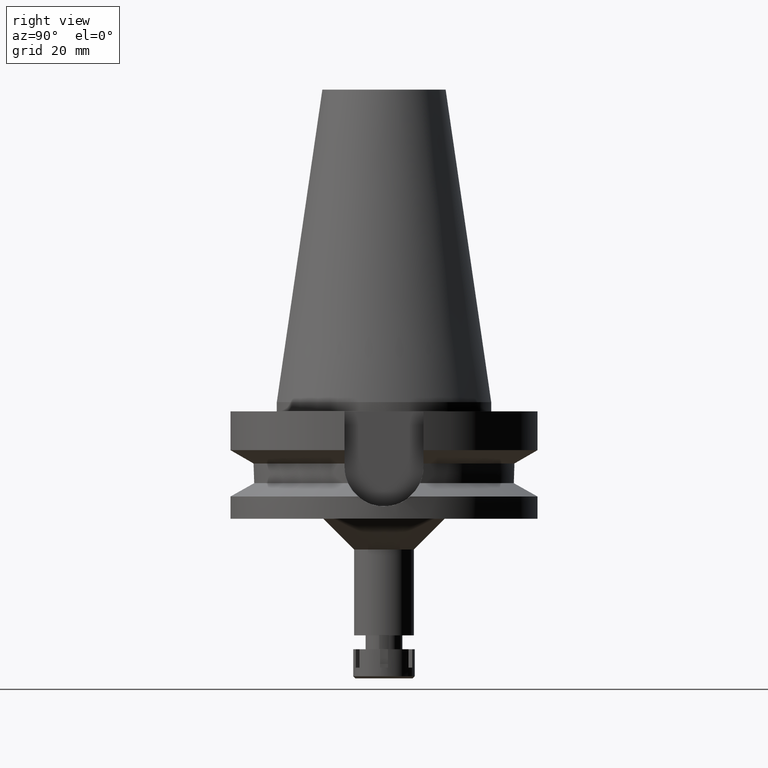
[diagram: clean part render]
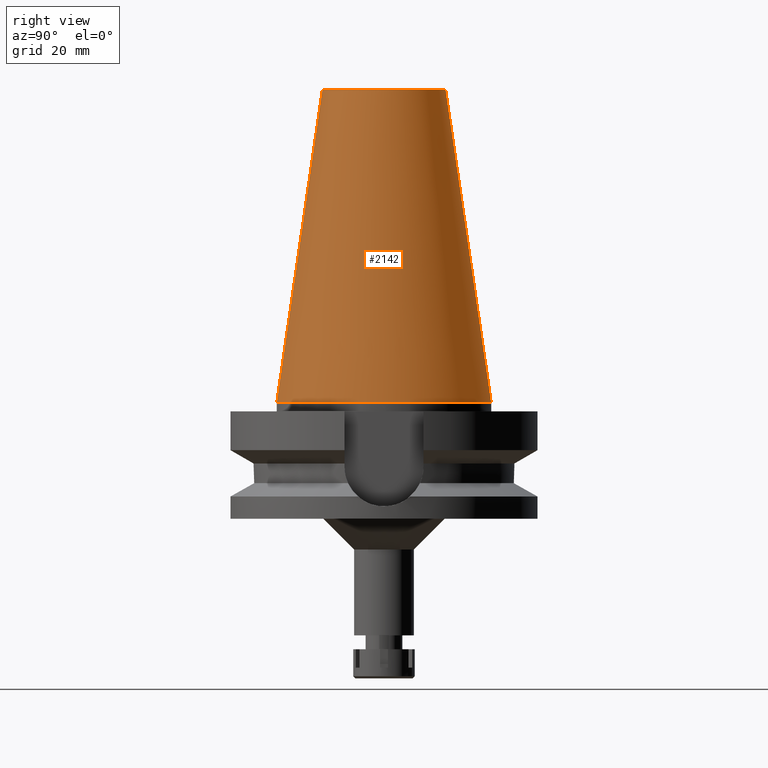
[diagram: same view with one face highlighted and labeled with its STEP entity id]
A machine part, right view. The second image highlights one B-rep face of the part: STEP entity #2142.
In plain terms, the highlighted conical surface has half-angle 8.297 deg.
Its self-contained STEP definition (entity closure, byte-faithful):
#128 = DIRECTION ( 'NONE',  ( 0.0000000000000000000, 0.0000000000000000000, -1.000000000000000000 ) ) ;
#151 = CARTESIAN_POINT ( 'NONE',  ( 0.0000000000000000000, -34.92499999999999716, 4.902744876745000264E-13 ) ) ;
#164 = DIRECTION ( 'NONE',  ( 0.0000000000000000000, -1.000000000000000000, 0.0000000000000000000 ) ) ;
#194 = CARTESIAN_POINT ( 'NONE',  ( 0.0000000000000000000, 1.847992019912999597E-14, 3.979039320256999774E-13 ) ) ;
#242 = EDGE_CURVE ( 'NONE', #2505, #2747, #472, .T. ) ;
#284 = DIRECTION ( 'NONE',  ( 0.0000000000000000000, -0.1443043893538948075, -0.9895333461855641000 ) ) ;
#300 = LINE ( 'NONE', #2583, #2312 ) ;
#395 = AXIS2_PLACEMENT_3D ( 'NONE', #1253, #2384, #1209 ) ;
#472 = CIRCLE ( 'NONE', #1893, 34.92499999999999716 ) ;
#679 = VERTEX_POINT ( 'NONE', #1841 ) ;
#686 = FACE_OUTER_BOUND ( 'NONE', #3061, .T. ) ;
#831 = LINE ( 'NONE', #2497, #3489 ) ;
#1033 = EDGE_CURVE ( 'NONE', #679, #2505, #300, .T. ) ;
#1108 = VERTEX_POINT ( 'NONE', #3139 ) ;
#1112 = ORIENTED_EDGE ( 'NONE', *, *, #3090, .T. ) ;
#1181 = DIRECTION ( 'NONE',  ( 0.0000000000000000000, 0.1443043893538948075, -0.9895333461855641000 ) ) ;
#1209 = DIRECTION ( 'NONE',  ( 0.0000000000000000000, 1.000000000000000000, 0.0000000000000000000 ) ) ;
#1253 = CARTESIAN_POINT ( 'NONE',  ( 0.0000000000000000000, 1.847992019912999597E-14, 101.7999999999999972 ) ) ;
#1332 = DIRECTION ( 'NONE',  ( 0.0000000000000000000, 0.0000000000000000000, -1.000000000000000000 ) ) ;
#1743 = AXIS2_PLACEMENT_3D ( 'NONE', #2743, #128, #164 ) ;
#1841 = CARTESIAN_POINT ( 'NONE',  ( 0.0000000000000000000, 20.07942971896000017, 101.7999999999999972 ) ) ;
#1893 = AXIS2_PLACEMENT_3D ( 'NONE', #194, #1332, #3341 ) ;
#2142 = ADVANCED_FACE ( 'NONE', ( #686 ), #2888, .T. ) ;
#2312 = VECTOR ( 'NONE', #1181, 1000.000000000000114 ) ;
#2325 = ORIENTED_EDGE ( 'NONE', *, *, #1033, .F. ) ;
#2384 = DIRECTION ( 'NONE',  ( 0.0000000000000000000, 0.0000000000000000000, -1.000000000000000000 ) ) ;
#2438 = CARTESIAN_POINT ( 'NONE',  ( 0.0000000000000000000, 34.92499999999999716, 4.902744876745000264E-13 ) ) ;
#2497 = CARTESIAN_POINT ( 'NONE',  ( 0.0000000000000000000, -20.07942971896000017, 101.7999999999999972 ) ) ;
#2505 = VERTEX_POINT ( 'NONE', #2438 ) ;
#2557 = ORIENTED_EDGE ( 'NONE', *, *, #242, .F. ) ;
#2583 = CARTESIAN_POINT ( 'NONE',  ( 0.0000000000000000000, 20.07942971896000017, 101.7999999999999972 ) ) ;
#2669 = ORIENTED_EDGE ( 'NONE', *, *, #3447, .T. ) ;
#2743 = CARTESIAN_POINT ( 'NONE',  ( 0.0000000000000000000, 1.847992019912999597E-14, 50.89999999999999858 ) ) ;
#2747 = VERTEX_POINT ( 'NONE', #151 ) ;
#2831 = CIRCLE ( 'NONE', #395, 20.07942971896000017 ) ;
#2888 = CONICAL_SURFACE ( 'NONE', #1743, 27.50221485948000222, 0.1448099680379422438 ) ;
#3061 = EDGE_LOOP ( 'NONE', ( #1112, #2669, #2557, #2325 ) ) ;
#3090 = EDGE_CURVE ( 'NONE', #679, #1108, #2831, .T. ) ;
#3139 = CARTESIAN_POINT ( 'NONE',  ( 0.0000000000000000000, -20.07942971896000017, 101.7999999999999972 ) ) ;
#3341 = DIRECTION ( 'NONE',  ( 0.0000000000000000000, 1.000000000000000000, 0.0000000000000000000 ) ) ;
#3447 = EDGE_CURVE ( 'NONE', #1108, #2747, #831, .T. ) ;
#3489 = VECTOR ( 'NONE', #284, 1000.000000000000114 ) ;